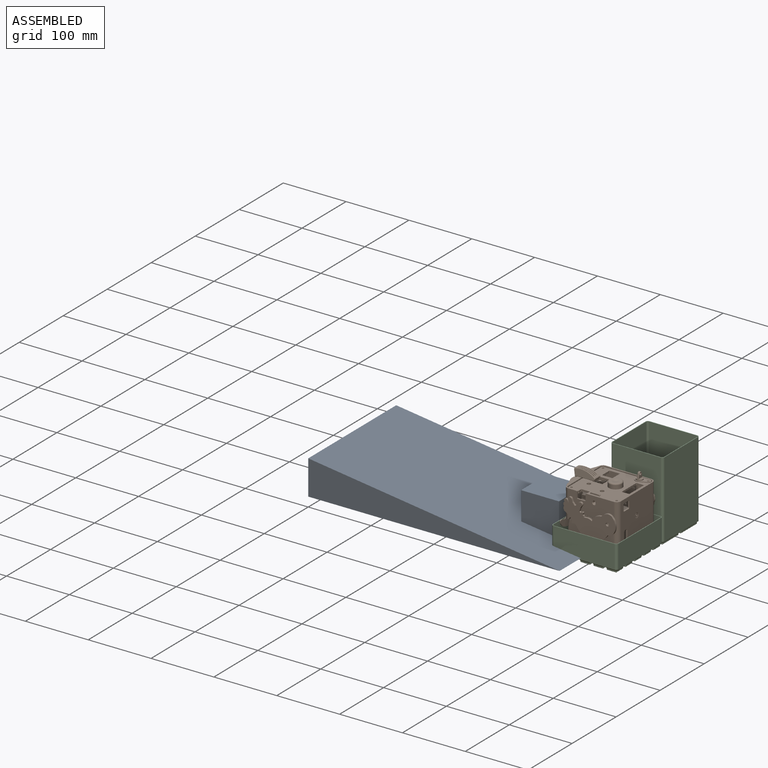
[diagram: assembled view]
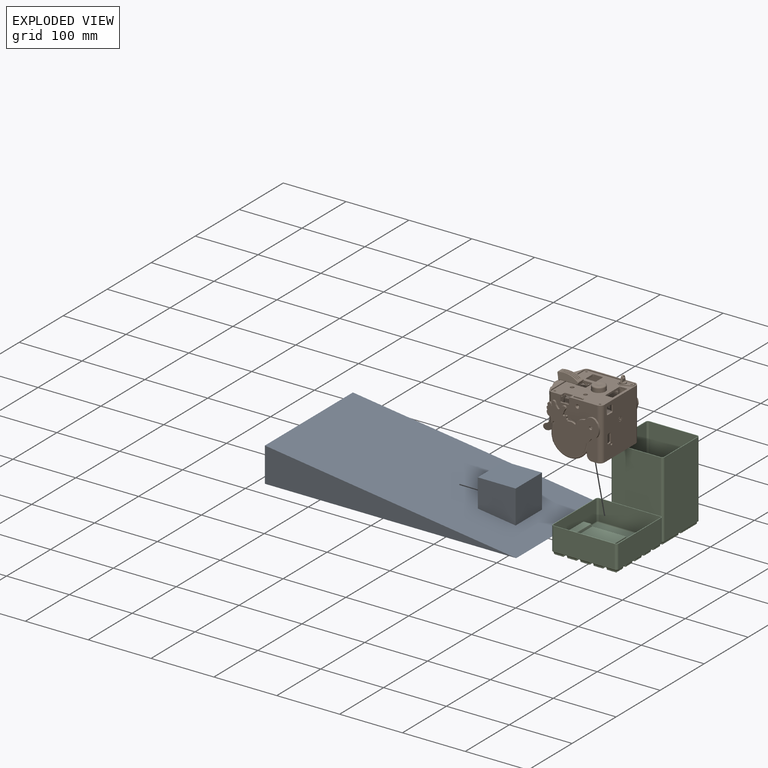
[diagram: exploded view]
GUIDED TOUR — FREECAD ASSEMBLY "PAMI-2025"

This assembly has 3 components, labeled P0..P2 below (a component is one placed body or linked part; the same part can appear more than once), held together by 0 modeled joints plus 2 derived contact edges. A joint is a constraint between two components; its type names the relative motion it leaves free:
  CONTACT — a derived adjacency edge — the two components touch in the source model (clearance under 2% of the assembly's diagonal); it is measured from the geometry, not a modeled constraint.
Axis/direction vectors are unit vectors and 'through' points are millimeter coordinates, both in the assembly's world frame.

MATES
  1. CONTACT "contact_0_2": P0 <-> P2, contact direction (1.000, 0.000, 0.000) through (-48.42, 29.42, -31.12) mm (derived from contact, not a modeled constraint)
  2. CONTACT "contact_1_2": P1 <-> P2, contact direction (0.101, 0.120, -0.988) through (26.80, 0.00, -28.09) mm (derived from contact, not a modeled constraint)

ASSEMBLY ORDER
  1. P2 — the base component [order verified]
  2. P1 [order verified]
  3. P0 [order verified]
Order-tag legend:
  [order verified] — this step's position reverses a verified removal order: the component was checked to insert without passing through the ones already placed.

Of the 3 components, 2 carry a construction recipe — the FreeCAD feature program (sketches with constraints, then the solid features that consume them) that regenerates the part from scratch, quoted from this document or from the linked companion document it references; the rest are supplied as boundary geometry only. The tour below walks the components in assembly order: each is shown spotlighted twice — in the assembled view, then in the exploded view, where a leader line traces a displaced component back to its assembled socket (components that stay in place when exploded have no leader line; saturated green if recipe-attached, orange if geometry-only; every other component desaturated gray) — followed by its recipe or geometry summary and the mates that hold it.
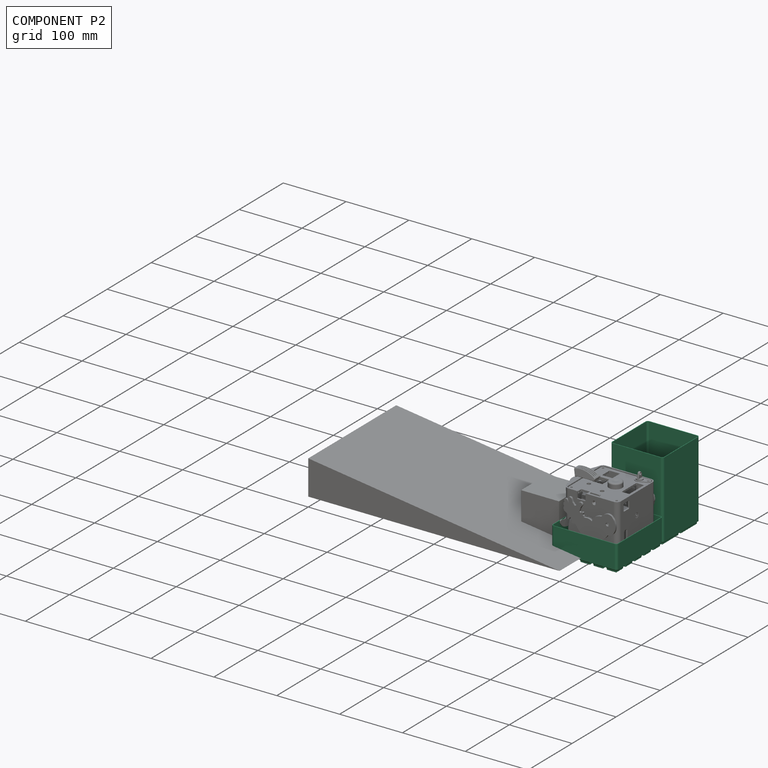
[diagram: component P2 — assembled]
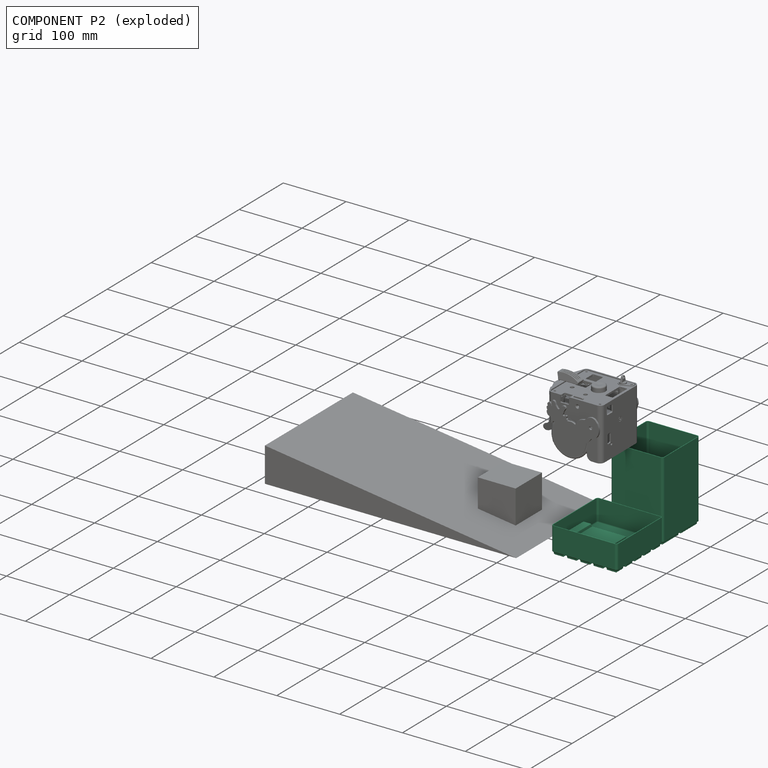
[diagram: component P2 — exploded]
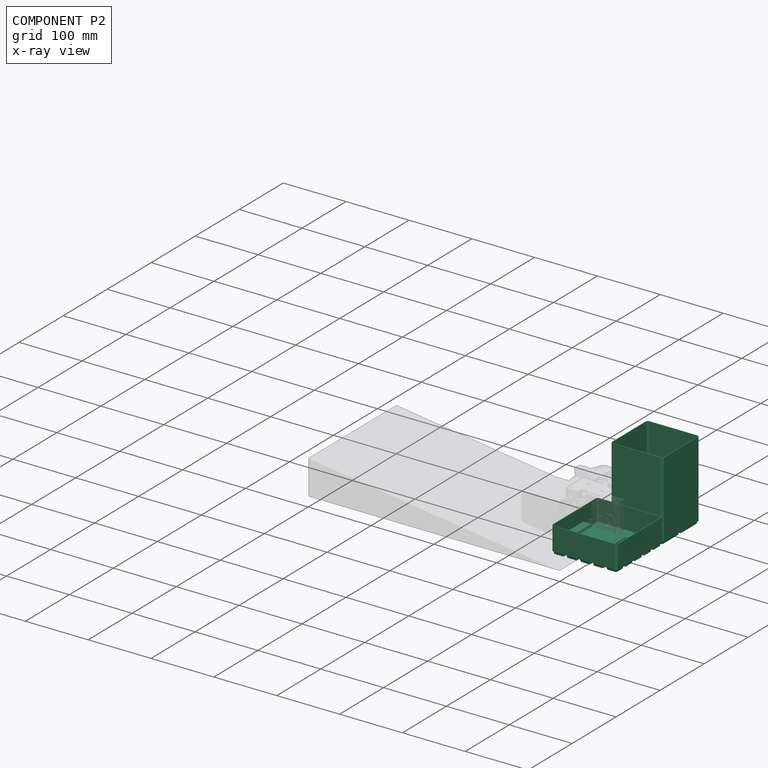
[diagram: component P2 — x-ray view]
COMPONENT P2 — recipe-attached ("Box", modeled in this document).
Held by: resting contact with P0 (derived edge); resting contact with P1 (derived edge).
Construction recipe (the document's own serialized feature program — sketch geometry with constraints, then the solid features built on it; lengths are millimeters unless a unit is written):

FEATURE [PartDesign::FeatureBase] Clone003
  BaseFeature = -> Solid004
  InvalidShape = false
  NewSolid = false
  Placement = pos=(5,0,5) rot=(0,0,1;0rad)
  Suppress = false
  TreeRank = 1840
  ValidateShape = true
FEATURE [Sketcher::SketchObject] Sketch198
  ArcFitTolerance = 1e-06
  AttachmentSupport = -> [XZ_Plane070]
  ExternalBSplineMaxDegree = 5
  ExternalBSplineTolerance = 0.0001
  ExternalGeometry = -> [Clone003]
  FullyConstrained = true
  InternalTolerance = 1e-06
  InvalidShape = false
  MakeInternals = false
  MapMode = 5
  Placement = pos=(0,0,0) rot=(1,0,0;1.5708rad)
  Support = -> [XZ_Plane070]
  TreeRank = 1842
  ValidateShape = false
  sketch-geometry (9):
    g0: LineSegment StartX=-46 StartY=-17 StartZ=0 EndX=-33.9406 EndY=-17 EndZ=0
    g1: LineSegment StartX=-33.9406 StartY=-17 StartZ=0 EndX=-33.2 EndY=-21.2 EndZ=0
    g2: LineSegment StartX=-33.2 StartY=-21.2 StartZ=0 EndX=20.9 EndY=-21.2 EndZ=0
    g3: LineSegment StartX=20.9 StartY=-21.2 StartZ=0 EndX=20.9 EndY=-23.2 EndZ=0
    g4: LineSegment StartX=20.9 StartY=-23.2 StartZ=0 EndX=24.7 EndY=-27 EndZ=0
    g5: LineSegment StartX=24.7 StartY=-27 StartZ=0 EndX=56.5 EndY=-27 EndZ=0
    g6: LineSegment StartX=56.5 StartY=-27 StartZ=0 EndX=56.5 EndY=-30 EndZ=0
    g7: LineSegment StartX=56.5 StartY=-30 StartZ=0 EndX=-46 EndY=-30 EndZ=0
    g8: LineSegment StartX=-46 StartY=-30 StartZ=0 EndX=-46 EndY=-17 EndZ=0
  constraints (27):
    c: PointOnObject(g0,g-4)
    c: Horizontal(g0)
    c: Coincident(g0,g1)
    c: Coincident(g1,g2)
    c: Horizontal(g2)
    c: Coincident(g2,g3)
    c: Vertical(g3)
    c: Coincident(g3,g4)
    c: Coincident(g4,g5)
    c: Horizontal(g5)
    c: PointOnObject(g5,g-5)
    c: Coincident(g5,g6)
    c: Vertical(g6)
    c: Coincident(g6,g7)
    c: Horizontal(g7)
    c: Coincident(g7,g8)
    c: Coincident(g8,g0)
    c: Vertical(g8)
    c: PointOnObject(g-3,g7)
    c: DistanceY(g6,g6) = 3
    c: Angle(g5,g4) = 2.35619
    c: DistanceX(g4,g5) = 31.8
    c: DistanceY(g7,g1) = 8.8
    c: DistanceX(g3,g4) = 3.8
    c: DistanceX(g1,g-1) = 33.2
    c: Angle(g2,g1) = 1.74533
    c: DistanceY(g8,g8) = 13
FEATURE [PartDesign::Pad] Pad086
  AddSubType = 0
  AlongSketchNormal = false
  AutoTaperInnerAngle = true
  BaseFeature = -> Clone003
  CheckUpToFaceLimits = true
  ClaimChildren = false
  Direction = (0,-1,2e-16)
  Fit = 0
  FitJoin = 0
  InnerFit = 0
  InnerFitJoin = 0
  InvalidShape = false
  Length = 40
  Length2 = 10
  Linearize = true
  Midplane = true
  NewSolid = false
  Profile = -> Sketch198
  ReferenceAxis = -> Sketch198 [N_Axis]
  Refine = true
  Suppress = false
  TaperInnerAngle = 0
  TaperInnerAngleRev = 0
  TreeRank = 1843
  Type = 0
  ValidateShape = true
  _ProfileBasedVersion = 1
FEATURE [Sketcher::SketchObject] Sketch199
  ArcFitTolerance = 1e-06
  AttachmentSupport = -> [Pad086]
  ExternalBSplineMaxDegree = 5
  ExternalBSplineTolerance = 0.0001
  FullyConstrained = true
  InternalTolerance = 1e-06
  InvalidShape = false
  MakeInternals = false
  MapMode = 5
  Placement = pos=(0,-6e-15,-27) rot=(0,0,1;0rad)
  Support = -> [Pad086]
  TreeRank = 1844
  ValidateShape = false
  sketch-geometry (1):
    g0: Circle CenterX=35.5 CenterY=0 CenterZ=0 NormalX=0 NormalY=0 NormalZ=1 AngleXU=0 Radius=9
  constraints (3):
    c: PointOnObject(g0,g-1)
    c: DistanceX(g-1,g0) = 35.5
    c: Diameter(g0) = 18
FEATURE [PartDesign::Pocket] Pocket107
  AddSubType = 1
  AlongSketchNormal = false
  AutoTaperInnerAngle = true
  BaseFeature = -> Pad086
  CheckUpToFaceLimits = true
  ClaimChildren = false
  Direction = (0,-2e-16,-1)
  Fit = 0
  FitJoin = 0
  InnerFit = 0
  InnerFitJoin = 0
  InvalidShape = false
  Length = 4
  Length2 = 10
  Linearize = true
  NewSolid = false
  Profile = -> Sketch199
  ReferenceAxis = -> Sketch199 [N_Axis]
  Refine = true
  Suppress = false
  TaperInnerAngle = 0
  TaperInnerAngleRev = 0
  TreeRank = 1845
  Type = 0
  ValidateShape = true
  _ProfileBasedVersion = 1
  _Version = 1
FEATURE [PartDesign::Draft] Draft006
  AddSubType = 0
  Angle = 15
  Base = -> Pocket107 [Face235]
  BaseFeature = -> Pocket107
  InvalidShape = false
  NeutralPlane = -> Pocket107 [Face243]
  NewSolid = false
  Refine = true
  SupportTransform = false
  Suppress = false
  TreeRank = 1846
  ValidateShape = true
FEATURE [PartDesign::Draft] Draft007
  AddSubType = 0
  Angle = 15
  Base = -> Draft006 [Face237]
  BaseFeature = -> Draft006
  InvalidShape = false
  NeutralPlane = -> Draft006 [Face243]
  NewSolid = false
  Refine = true
  SupportTransform = false
  Suppress = false
  TreeRank = 1847
  ValidateShape = true
FEATURE [PartDesign::Fillet] Fillet091
  AddSubType = 0
  Base = -> Draft007 [Edge719]
  BaseFeature = -> Draft007
  InvalidShape = false
  NewSolid = false
  Radius = 1
  Refine = true
  SupportTransform = false
  Suppress = false
  TreeRank = 1848
  UseAllEdges = false
  ValidateShape = true
FEATURE [PartDesign::Fillet] Fillet092
  AddSubType = 0
  Base = -> Fillet091 [Edge36,Edge51]
  BaseFeature = -> Fillet091
  InvalidShape = false
  NewSolid = false
  Radius = 0.8
  Refine = true
  SupportTransform = false
  Suppress = false
  TreeRank = 1849
  UseAllEdges = false
  ValidateShape = true
FEATURE [PartDesign::Body] Body057  label="BoxPami2025"
  AutoGroupSolids = false
  BaseFeature = -> Solid004
  ClaimAllChildren = false
  ExportMode = 0
  Group = -> [Clone003,Sketch198,Pad086,Sketch199,Pocket107,Draft006,Draft007,Fillet091,Fillet092]
  InvalidShape = false
  Origin = -> Origin080
  Tip = -> Fillet092
  TreeRank = 1841
  ValidateShape = false
  _ExportChildren = -> [Clone003,Pad086,Pocket107,Draft006,Draft007,Fillet091,Fillet092]
  _GroupVersion = 1
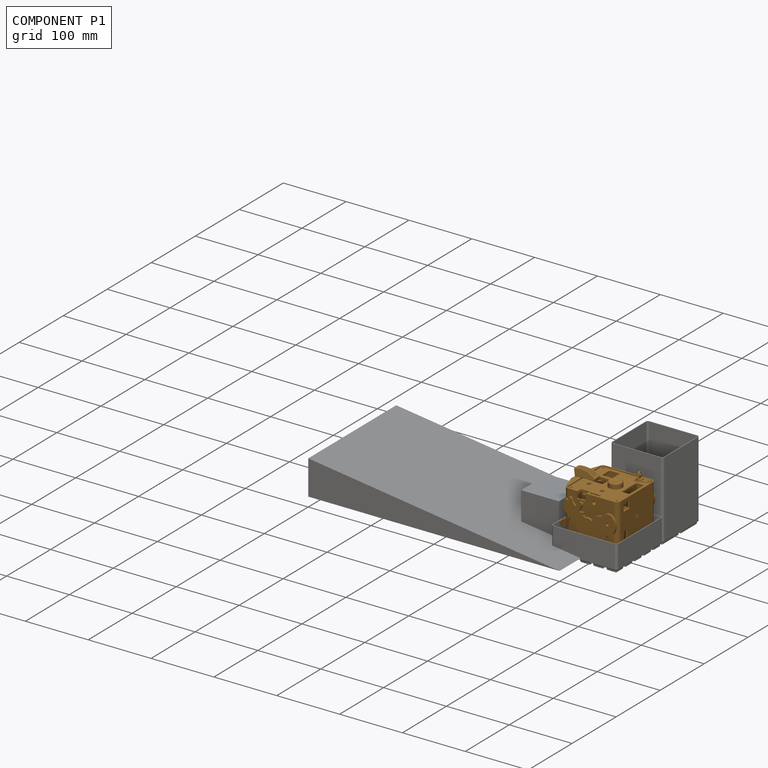
[diagram: component P1 — assembled]
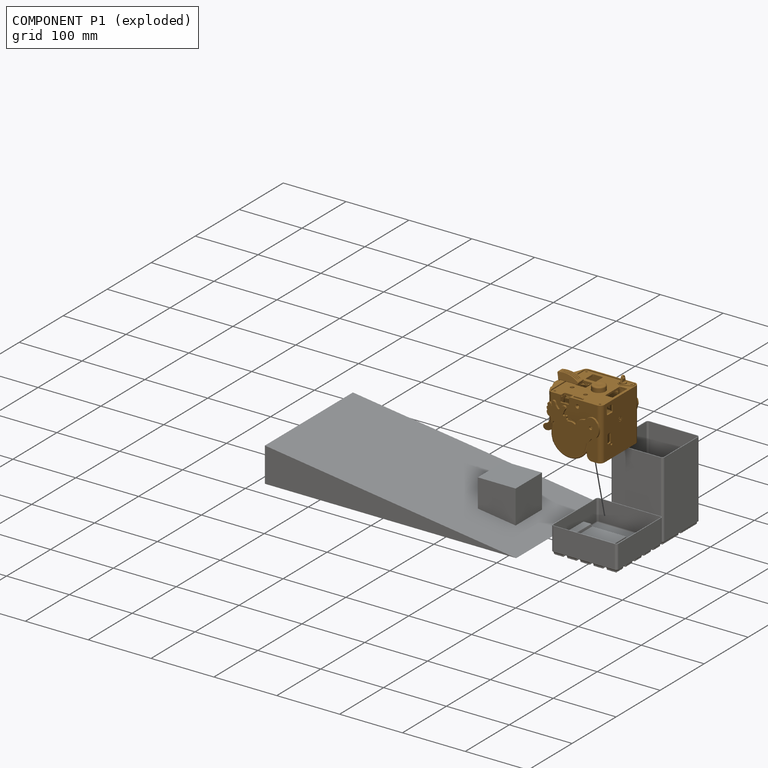
[diagram: component P1 — exploded]
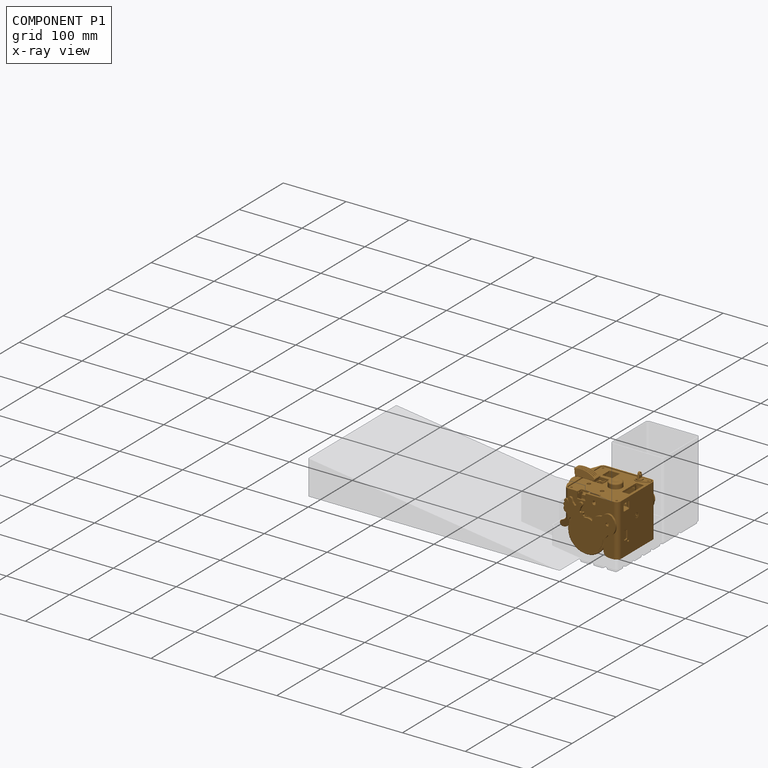
[diagram: component P1 — x-ray view]
COMPONENT P1 — geometry summary ("PAMI-2025"; no construction recipe available for this part):
  bounding box: 101.9 x 101.9 x 96.5 mm
  tessellated surface: 445,220 triangles
  volume: 334648 mm^3 (33% of its bounding box)
Held by: resting contact with P2 (derived edge).
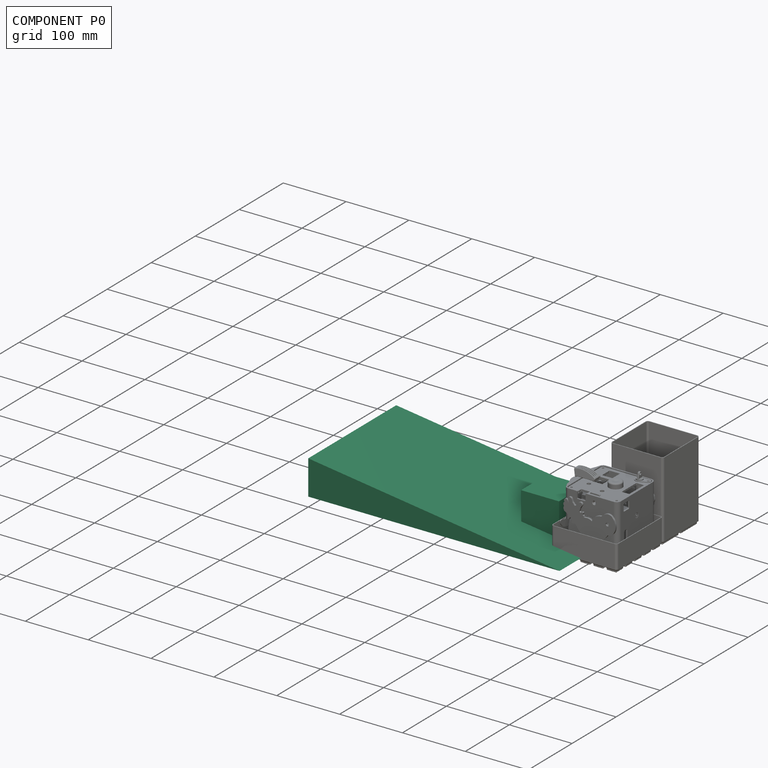
[diagram: component P0 — assembled]
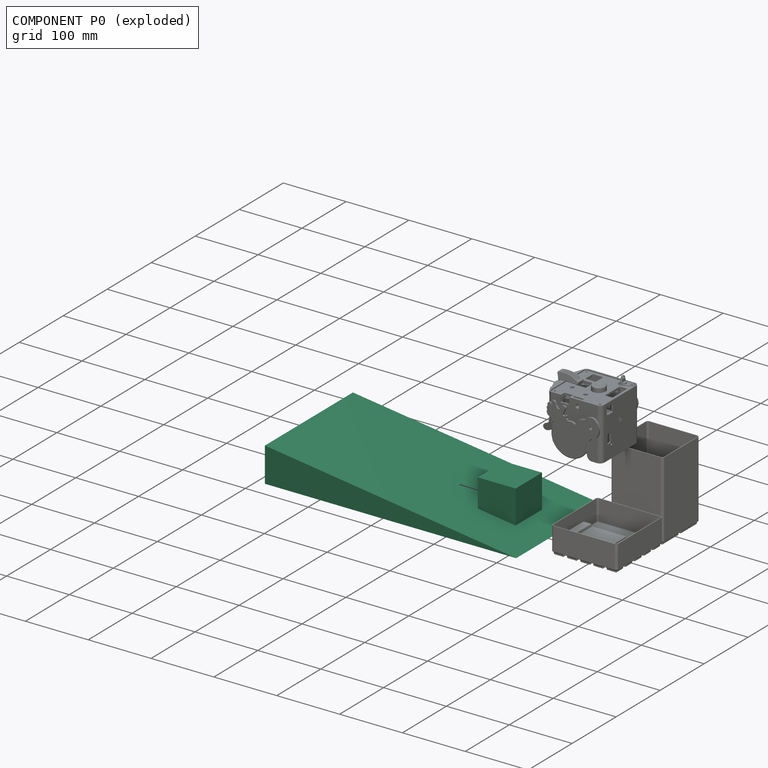
[diagram: component P0 — exploded]
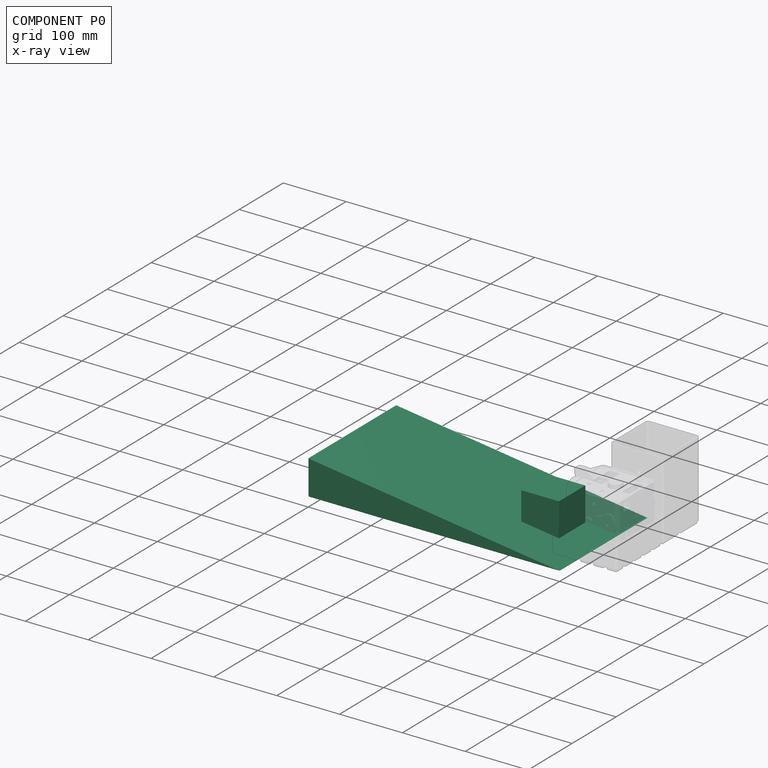
[diagram: component P0 — x-ray view]
COMPONENT P0 — recipe-attached ("Elements", modeled in this document).
Held by: resting contact with P2 (derived edge).
Construction recipe (the document's own serialized feature program — sketch geometry with constraints, then the solid features built on it; lengths are millimeters unless a unit is written):

FEATURE [Sketcher::SketchObject] Sketch112
  ArcFitTolerance = 1e-06
  AttachmentSupport = -> [XZ_Plane042]
  ExternalBSplineMaxDegree = 5
  ExternalBSplineTolerance = 0.0001
  FixShape = 1
  FullyConstrained = true
  InternalTolerance = 1e-06
  InvalidShape = false
  MakeInternals = false
  MapMode = 5
  Placement = pos=(0,0,0) rot=(1,0,0;1.5708rad)
  Support = -> [XZ_Plane042]
  TreeRank = 1130
  ValidateShape = false
  sketch-geometry (3):
    g0: LineSegment StartX=0 StartY=0 StartZ=0 EndX=-400 EndY=0 EndZ=0
    g1: LineSegment StartX=-400 StartY=0 StartZ=0 EndX=-400 EndY=55 EndZ=0
    g2: LineSegment StartX=-400 StartY=55 StartZ=0 EndX=0 EndY=-7.1e-15 EndZ=0
  constraints (8):
    c: Coincident(g0,g-1)
    c: PointOnObject(g0,g-1)
    c: Coincident(g0,g1)
    c: Vertical(g1)
    c: Coincident(g1,g2)
    c: Coincident(g2,g0)
    c: DistanceY(g1,g1) = 55
    c: DistanceX(g0,g0) = 400
FEATURE [PartDesign::Pad] Pad046
  AddSubType = 0
  AlongSketchNormal = false
  AutoTaperInnerAngle = true
  CheckUpToFaceLimits = true
  ClaimChildren = false
  Direction = (0,-1,2e-16)
  Fit = 0
  FitJoin = 0
  FixShape = 1
  InnerFit = 0
  InnerFitJoin = 0
  InvalidShape = false
  Length = 200
  Length2 = 10
  Linearize = true
  Midplane = true
  NewSolid = false
  Profile = -> Sketch112
  ReferenceAxis = -> Sketch112 [N_Axis]
  Refine = true
  Suppress = false
  TaperInnerAngle = 0
  TaperInnerAngleRev = 0
  TreeRank = 1131
  Type = 0
  ValidateShape = true
  _ProfileBasedVersion = 1
FEATURE [PartDesign::Body] Body032  label="Rampe"
  AutoGroupSolids = false
  ClaimAllChildren = false
  ExportMode = 0
  FixShape = 1
  Group = -> [Sketch112,Pad046]
  InvalidShape = false
  Origin = -> Origin047
  Placement = pos=(0,0,-30) rot=(0,0,1;0rad)
  SingleSolid = true
  Tip = -> Pad046
  TreeRank = 1129
  ValidateShape = false
  _ExportChildren = -> [Pad046]
  _GroupVersion = 1
FEATURE [Sketcher::SketchObject] Sketch138
  ArcFitTolerance = 1e-06
  AttachmentSupport = -> [XY_Plane047]
  ExternalBSplineMaxDegree = 5
  ExternalBSplineTolerance = 0.0001
  FullyConstrained = true
  InternalTolerance = 1e-06
  InvalidShape = false
  MakeInternals = true
  MapMode = 5
  Support = -> [XY_Plane047]
  TreeRank = 1303
  ValidateShape = false
  sketch-geometry (5):
    g0: LineSegment StartX=-30 StartY=-30 StartZ=0 EndX=-30 EndY=30 EndZ=0
    g1: LineSegment StartX=-30 StartY=30 StartZ=0 EndX=30 EndY=30 EndZ=0
    g2: LineSegment StartX=30 StartY=30 StartZ=0 EndX=30 EndY=-30 EndZ=0
    g3: LineSegment StartX=30 StartY=-30 StartZ=0 EndX=-30 EndY=-30 EndZ=0
    g4: GeomPoint [constr] X=0 Y=0 Z=0
  constraints (12):
    c: Coincident(g0,g1)
    c: Coincident(g1,g2)
    c: Coincident(g2,g3)
    c: Coincident(g3,g0)
    c: Horizontal(g1)
    c: Horizontal(g3)
    c: Vertical(g0)
    c: Vertical(g2)
    c: Symmetric(g1,g0,g4)
    c: Coincident(g4,g-1)
    c: Equal(g2,g1)
    c: DistanceY(g2,g2) = 60
FEATURE [PartDesign::Pad] Pad057
  AddSubType = 0
  AlongSketchNormal = false
  AutoTaperInnerAngle = true
  CheckUpToFaceLimits = true
  ClaimChildren = false
  Direction = (0,0,1)
  Fit = 0
  FitJoin = 0
  InnerFit = 0
  InnerFitJoin = 0
  InvalidShape = false
  Length = 60
  Length2 = 10
  Linearize = true
  NewSolid = false
  Profile = -> Sketch138
  ReferenceAxis = -> Sketch138 [N_Axis]
  Refine = true
  Suppress = false
  TaperInnerAngle = 0
  TaperInnerAngleRev = 0
  TreeRank = 1304
  Type = 0
  ValidateShape = true
  _ProfileBasedVersion = 1
FEATURE [PartDesign::Body] Body037  label="RobotAdverseMinimum"
  AutoGroupSolids = false
  ClaimAllChildren = false
  ExportMode = 0
  Group = -> [Sketch138,Pad057]
  InvalidShape = false
  Origin = -> Origin053
  Placement = pos=(-80,0,-30) rot=(0,0,1;0rad)
  Tip = -> Pad057
  TreeRank = 1302
  ValidateShape = false
  _ExportChildren = -> [Pad057]
  _GroupVersion = 1
PROVENANCE & LICENSES
Assembly and component geometry: a FreeCAD (.FCStd) document from a public repository crawl; components, placements and joints were extracted with FreeCAD and each solid tessellated.
Construction recipes: the document's own serialized feature recipes (and, for linked parts, the recipes of companion documents from the same project).
License: as declared in the source repository (recorded in the dataset sidecar).
Joints: native FreeCAD joints and A2plus constraints are mapped to standard mate types; edges marked 'derived from contact' connect touching components and are measured from the geometry, not modeled.
Verification: 2 of this assembly's 3 components carry a construction recipe (2 from this document itself); the rest are geometry-only. Every component's tessellation passed the extraction mesh gates (mesh-volume checksum against the B-rep where available, bounding-box inflation <= 2%).
Renders: orthographic iso camera (az 35 / el 25); the floor grid conveys scale (grid pitch printed in each image; no ruler). In the exploded view each component is displaced by its stored offset vector: the offsets alone carry the explosion direction (mate normal/axis signs are not orientation cues and do not encode it), and separation distances are assigned per mate-chain, not proportionally to assembly-order depth.
